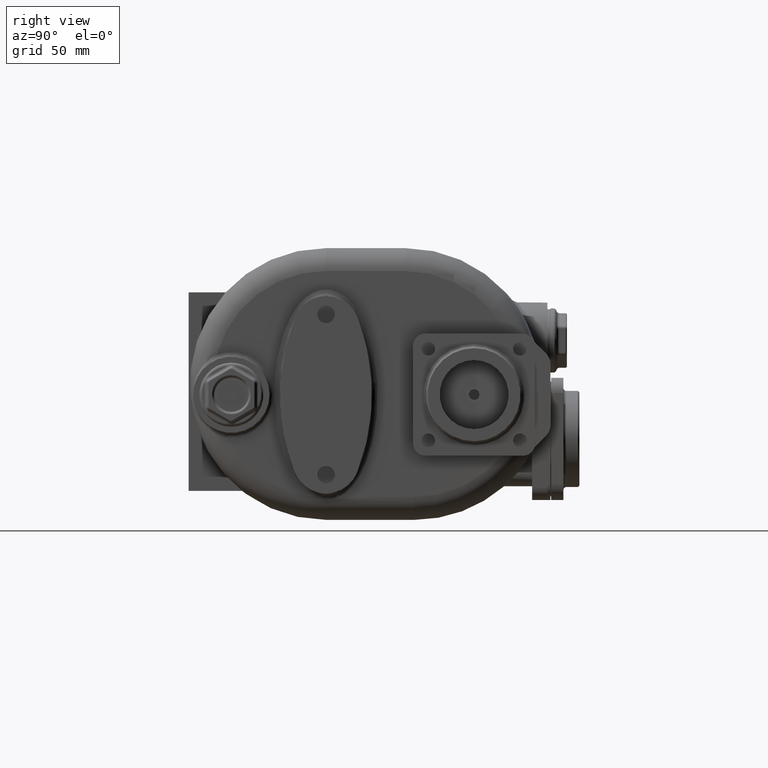
[diagram: clean part render]
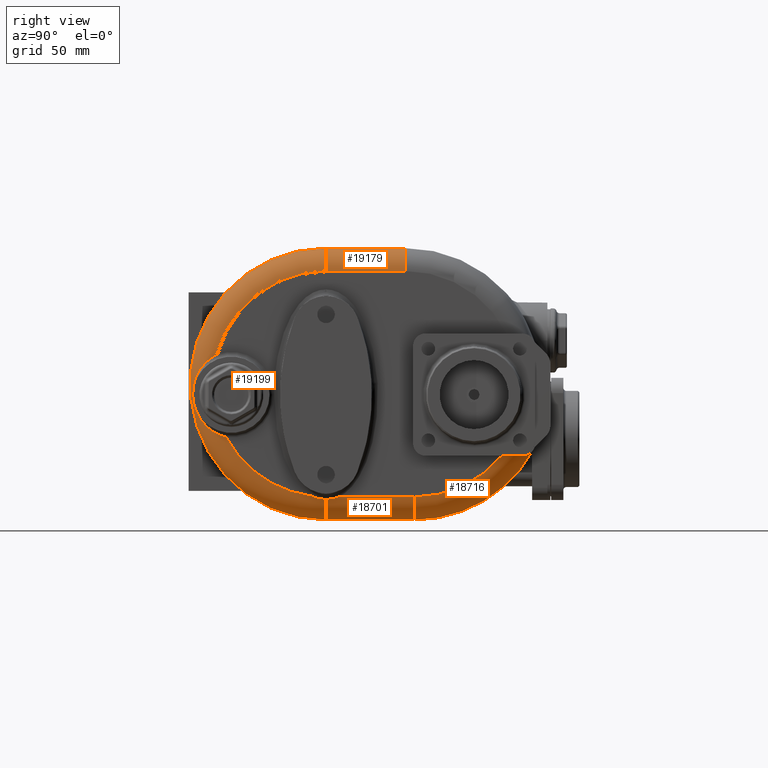
[diagram: same view with one multi-face feature highlighted, each face labeled with its STEP entity id]
A machine part, right view. The highlighted faces form ONE feature: a constant-radius fillet chain: 4 tangent blend faces with common blend radius 15 mm. The faces share edges in the B-rep.
Their STEP definitions:
[1] entity #18716 (Torus):
#1344=CARTESIAN_POINT('',(5.E1,1.480070426028E2,0.E0));
#1345=DIRECTION('',(1.E0,0.E0,0.E0));
#1346=DIRECTION('',(0.E0,0.E0,-1.E0));
#1347=AXIS2_PLACEMENT_3D('',#1344,#1345,#1346);
#1594=CARTESIAN_POINT('',(3.5E1,1.480070426028E2,-7.4E1));
#1595=DIRECTION('',(0.E0,1.E0,0.E0));
#1596=DIRECTION('',(1.E0,0.E0,0.E0));
#1597=AXIS2_PLACEMENT_3D('',#1594,#1595,#1596);
#1599=CARTESIAN_POINT('',(5.E1,2.051647192526E2,-4.7E1));
#1600=CARTESIAN_POINT('',(5.E1,2.054604480246E2,-4.7E1));
#1601=CARTESIAN_POINT('',(4.998957448394E1,2.060469748E2,-4.7E1));
#1602=CARTESIAN_POINT('',(4.994348871250E1,2.069126963310E2,-4.7E1));
#1603=CARTESIAN_POINT('',(4.986785899812E1,2.077621787491E2,-4.7E1));
#1604=CARTESIAN_POINT('',(4.976376363823E1,2.085937500739E2,-4.7E1));
#1605=CARTESIAN_POINT('',(4.963192232093E1,2.094082643997E2,-4.7E1));
#1606=CARTESIAN_POINT('',(4.947333763354E1,2.102041357612E2,-4.7E1));
#1607=CARTESIAN_POINT('',(4.928911085815E1,2.109800225709E2,-4.7E1));
#1608=CARTESIAN_POINT('',(4.908053117967E1,2.117344162030E2,-4.7E1));
#1609=CARTESIAN_POINT('',(4.884834021048E1,2.124678501238E2,-4.7E1));
#1610=CARTESIAN_POINT('',(4.859389860537E1,2.131788073620E2,-4.7E1));
#1611=CARTESIAN_POINT('',(4.831803735577E1,2.138675021596E2,-4.7E1));
#1612=CARTESIAN_POINT('',(4.802208028934E1,2.145328808469E2,-4.7E1));
#1613=CARTESIAN_POINT('',(4.770677934360E1,2.151752858305E2,-4.7E1));
#1614=CARTESIAN_POINT('',(4.737343372692E1,2.157938863265E2,-4.7E1));
#1615=CARTESIAN_POINT('',(4.702279652295E1,2.163889612331E2,-4.7E1));
#1616=CARTESIAN_POINT('',(4.665605186307E1,2.169599979273E2,-4.7E1));
#1617=CARTESIAN_POINT('',(4.627402823570E1,2.175071080283E2,-4.7E1));
#1618=CARTESIAN_POINT('',(4.587773883715E1,2.180301070302E2,-4.7E1));
#1619=CARTESIAN_POINT('',(4.546794498915E1,2.185291408812E2,-4.7E1));
#1620=CARTESIAN_POINT('',(4.518649188265E1,2.188456657205E2,-4.7E1));
#1621=CARTESIAN_POINT('',(4.504374406733E1,2.19E2,-4.7E1));
#1623=CARTESIAN_POINT('',(4.504374406733E1,2.19E2,-4.7E1));
#1624=CARTESIAN_POINT('',(4.492001548732E1,2.191337713030E2,-4.7E1));
#1625=CARTESIAN_POINT('',(4.466609038040E1,2.194035594413E2,-4.699329001555E1));
#1626=CARTESIAN_POINT('',(4.426545478998E1,2.198140130738E2,-4.696208160126E1));
#1627=CARTESIAN_POINT('',(4.384562487692E1,2.202283453526E2,-4.690885871310E1));
#1628=CARTESIAN_POINT('',(4.340748213830E1,2.206444581156E2,-4.683302001016E1));
#1629=CARTESIAN_POINT('',(4.295029711332E1,2.210617937295E2,-4.673376867051E1));
#1630=CARTESIAN_POINT('',(4.247448803435E1,2.214786557775E2,-4.661052058175E1));
#1631=CARTESIAN_POINT('',(4.198081766297E1,2.218931025346E2,-4.646291973076E1));
#1632=CARTESIAN_POINT('',(4.146992430627E1,2.223033686463E2,-4.629071773008E1));
#1633=CARTESIAN_POINT('',(4.094150849634E1,2.227084098325E2,-4.609338468517E1));
#1634=CARTESIAN_POINT('',(4.039720989749E1,2.231056838095E2,-4.587117184634E1));
#1635=CARTESIAN_POINT('',(3.983871792395E1,2.234928144359E2,-4.562460524809E1));
#1636=CARTESIAN_POINT('',(3.926670744910E1,2.238682408303E2,-4.535391589767E1));
#1637=CARTESIAN_POINT('',(3.868182105884E1,2.242304177610E2,-4.505936590040E1));
#1638=CARTESIAN_POINT('',(3.808587461294E1,2.245771388729E2,-4.474191277395E1));
#1639=CARTESIAN_POINT('',(3.748079396307E1,2.249063437128E2,-4.440277784883E1));
#1640=CARTESIAN_POINT('',(3.686727979972E1,2.252167359147E2,-4.404260447110E1));
#1641=CARTESIAN_POINT('',(3.624783002651E1,2.255062090768E2,-4.366319202281E1));
#1642=CARTESIAN_POINT('',(3.562458399145E1,2.257730883713E2,-4.326632014016E1));
#1643=CARTESIAN_POINT('',(3.520834982961E1,2.259348565896E2,-4.299164157888E1));
#1644=CARTESIAN_POINT('',(3.5E1,2.260116501133E2,-4.285185185185E1));
#1674=CARTESIAN_POINT('',(3.5E1,1.480070426028E2,0.E0));
#1675=DIRECTION('',(1.E0,0.E0,0.E0));
#1676=DIRECTION('',(0.E0,0.E0,-1.E0));
#1677=AXIS2_PLACEMENT_3D('',#1674,#1675,#1676);
#14316=CARTESIAN_POINT('',(3.5E1,1.480070426028E2,-8.9E1));
#14317=CARTESIAN_POINT('',(3.5E1,2.260116501133E2,-4.285185185185E1));
#14318=VERTEX_POINT('',#14316);
#14319=VERTEX_POINT('',#14317);
#14320=CARTESIAN_POINT('',(5.E1,1.480070426028E2,-7.4E1));
#14321=CARTESIAN_POINT('',(5.E1,2.051647192526E2,-4.7E1));
#14322=VERTEX_POINT('',#14320);
#14323=VERTEX_POINT('',#14321);
#14339=VERTEX_POINT('',#1621);
#18702=CARTESIAN_POINT('',(3.5E1,1.480070426028E2,0.E0));
#18703=DIRECTION('',(-1.E0,0.E0,0.E0));
#18704=DIRECTION('',(0.E0,-7.747702440691E-3,-9.999699861030E-1));
#18705=AXIS2_PLACEMENT_3D('',#18702,#18703,#18704);
#18706=TOROIDAL_SURFACE('',#18705,7.4E1,1.5E1);
#18708=ORIENTED_EDGE('',*,*,#18707,.F.);
#18709=ORIENTED_EDGE('',*,*,#18693,.F.);
#18710=ORIENTED_EDGE('',*,*,#18150,.T.);
#18711=ORIENTED_EDGE('',*,*,#17561,.T.);
#18713=ORIENTED_EDGE('',*,*,#18712,.T.);
#18714=EDGE_LOOP('',(#18708,#18709,#18710,#18711,#18713));
#18715=FACE_OUTER_BOUND('',#18714,.F.);
#18716=ADVANCED_FACE('',(#18715),#18706,.T.);
#1348=CIRCLE('',#1347,7.4E1);
#1598=CIRCLE('',#1597,1.5E1);
#1622=B_SPLINE_CURVE_WITH_KNOTS('',3,(#1599,#1600,#1601,#1602,#1603,#1604,#1605,
#1606,#1607,#1608,#1609,#1610,#1611,#1612,#1613,#1614,#1615,#1616,#1617,#1618,
#1619,#1620,#1621),.UNSPECIFIED.,.F.,.F.,(4,1,1,1,1,1,1,1,1,1,1,1,1,1,1,1,1,1,1,
1,4),(0.E0,5.E-2,1.E-1,1.5E-1,2.E-1,2.5E-1,3.E-1,3.5E-1,4.E-1,4.5E-1,5.E-1,
5.5E-1,6.E-1,6.5E-1,7.E-1,7.5E-1,8.E-1,8.5E-1,9.E-1,9.5E-1,1.E0),.UNSPECIFIED.);
#1645=B_SPLINE_CURVE_WITH_KNOTS('',3,(#1623,#1624,#1625,#1626,#1627,#1628,#1629,
#1630,#1631,#1632,#1633,#1634,#1635,#1636,#1637,#1638,#1639,#1640,#1641,#1642,
#1643,#1644),.UNSPECIFIED.,.F.,.F.,(4,1,1,1,1,1,1,1,1,1,1,1,1,1,1,1,1,1,1,4),(
0.E0,5.263157894737E-2,1.052631578947E-1,1.578947368421E-1,2.105263157895E-1,
2.631578947368E-1,3.157894736842E-1,3.684210526316E-1,4.210526315789E-1,
4.736842105263E-1,5.263157894737E-1,5.789473684211E-1,6.315789473684E-1,
6.842105263158E-1,7.368421052632E-1,7.894736842105E-1,8.421052631579E-1,
8.947368421053E-1,9.473684210526E-1,1.E0),.UNSPECIFIED.);
#1678=CIRCLE('',#1677,8.9E1);
#17561=EDGE_CURVE('',#14323,#14339,#1622,.T.);
#18150=EDGE_CURVE('',#14322,#14323,#1348,.T.);
#18693=EDGE_CURVE('',#14322,#14318,#1598,.T.);
#18707=EDGE_CURVE('',#14318,#14319,#1678,.T.);
#18712=EDGE_CURVE('',#14339,#14319,#1645,.T.);
[2] entity #18701 (Cylinder):
#1349=DIRECTION('',(-5.484348586333E-8,1.E0,6.468834463909E-14));
#1350=VECTOR('',#1349,4.964809632329E1);
#1351=CARTESIAN_POINT('',(5.000000272287E1,9.835894627951E1,-7.4E1));
#1352=LINE('',#1351,#1350);
#1353=CARTESIAN_POINT('',(5.000000272287E1,9.835894627951E1,-7.4E1));
#1574=CARTESIAN_POINT('',(4.991667028371E1,8.999999999996E1,-7.557894781954E1));
#1575=CARTESIAN_POINT('',(4.991667432725E1,9.025286134367E1,-7.557894518014E1));
#1576=CARTESIAN_POINT('',(4.991756472602E1,9.075908529133E1,-7.557045638069E1));
#1577=CARTESIAN_POINT('',(4.992158041935E1,9.152015494578E1,-7.553209520426E1));
#1578=CARTESIAN_POINT('',(4.992807138358E1,9.228226849688E1,-7.546787076244E1));
#1579=CARTESIAN_POINT('',(4.993672161475E1,9.304501082682E1,-7.537764276855E1));
#1580=CARTESIAN_POINT('',(4.994707391416E1,9.380795171828E1,-7.526118338519E1));
#1581=CARTESIAN_POINT('',(4.995852716923E1,9.457094237530E1,-7.511830380394E1));
#1582=CARTESIAN_POINT('',(4.997033976277E1,9.533358224529E1,-7.494873204050E1));
#1583=CARTESIAN_POINT('',(4.998160895249E1,9.609519200048E1,-7.475236640724E1));
#1584=CARTESIAN_POINT('',(4.999128254641E1,9.685458690036E1,-7.452923005348E1));
#1585=CARTESIAN_POINT('',(4.999815627731E1,9.761015977225E1,-7.427964791418E1));
#1586=CARTESIAN_POINT('',(5.000000323300E1,9.810993273399E1,-7.409609835297E1));
#1587=CARTESIAN_POINT('',(5.000000272287E1,9.835894627951E1,-7.4E1));
#1589=CARTESIAN_POINT('',(3.5E1,9.E1,-7.4E1));
#1590=DIRECTION('',(0.E0,1.E0,0.E0));
#1591=DIRECTION('',(9.944444014574E-1,0.E0,-1.052631578947E-1));
#1592=AXIS2_PLACEMENT_3D('',#1589,#1590,#1591);
#1594=CARTESIAN_POINT('',(3.5E1,1.480070426028E2,-7.4E1));
#1595=DIRECTION('',(0.E0,1.E0,0.E0));
#1596=DIRECTION('',(1.E0,0.E0,0.E0));
#1597=AXIS2_PLACEMENT_3D('',#1594,#1595,#1596);
#2266=CARTESIAN_POINT('',(4.991667028371E1,8.999999999996E1,-7.557894781954E1));
#12696=DIRECTION('',(0.E0,1.E0,0.E0));
#12697=VECTOR('',#12696,5.800704260279E1);
#12698=CARTESIAN_POINT('',(3.5E1,9.000000000001E1,-8.9E1));
#12699=LINE('',#12698,#12697);
#14316=CARTESIAN_POINT('',(3.5E1,1.480070426028E2,-8.9E1));
#14318=VERTEX_POINT('',#14316);
#14320=CARTESIAN_POINT('',(5.E1,1.480070426028E2,-7.4E1));
#14322=VERTEX_POINT('',#14320);
#14324=CARTESIAN_POINT('',(3.5E1,9.000000000001E1,-8.9E1));
#14325=VERTEX_POINT('',#14324);
#14372=VERTEX_POINT('',#1353);
#14384=VERTEX_POINT('',#2266);
#18686=CARTESIAN_POINT('',(3.5E1,8.931044758405E1,-7.4E1));
#18687=DIRECTION('',(0.E0,1.E0,0.E0));
#18688=DIRECTION('',(1.E0,0.E0,0.E0));
#18689=AXIS2_PLACEMENT_3D('',#18686,#18687,#18688);
#18690=CYLINDRICAL_SURFACE('',#18689,1.5E1);
#18691=ORIENTED_EDGE('',*,*,#18676,.T.);
#18692=ORIENTED_EDGE('',*,*,#18152,.T.);
#18694=ORIENTED_EDGE('',*,*,#18693,.T.);
#18696=ORIENTED_EDGE('',*,*,#18695,.F.);
#18698=ORIENTED_EDGE('',*,*,#18697,.F.);
#18699=EDGE_LOOP('',(#18691,#18692,#18694,#18696,#18698));
#18700=FACE_OUTER_BOUND('',#18699,.F.);
#18701=ADVANCED_FACE('',(#18700),#18690,.T.);
#1588=B_SPLINE_CURVE_WITH_KNOTS('',3,(#1574,#1575,#1576,#1577,#1578,#1579,#1580,
#1581,#1582,#1583,#1584,#1585,#1586,#1587),.UNSPECIFIED.,.F.,.F.,(4,1,1,1,1,1,1,
1,1,1,1,4),(0.E0,9.090909090909E-2,1.818181818182E-1,2.727272727273E-1,
3.636363636364E-1,4.545454545455E-1,5.454545454545E-1,6.363636363636E-1,
7.272727272727E-1,8.181818181818E-1,9.090909090909E-1,1.E0),.UNSPECIFIED.);
#1593=CIRCLE('',#1592,1.5E1);
#1598=CIRCLE('',#1597,1.5E1);
#18152=EDGE_CURVE('',#14372,#14322,#1352,.T.);
#18676=EDGE_CURVE('',#14384,#14372,#1588,.T.);
#18693=EDGE_CURVE('',#14322,#14318,#1598,.T.);
#18695=EDGE_CURVE('',#14325,#14318,#12699,.T.);
#18697=EDGE_CURVE('',#14384,#14325,#1593,.T.);
[3] entity #19199 (Torus):
#1330=CARTESIAN_POINT('',(5.E1,9.E1,0.E0));
#1331=DIRECTION('',(1.E0,0.E0,0.E0));
#1332=DIRECTION('',(0.E0,0.E0,1.E0));
#1333=AXIS2_PLACEMENT_3D('',#1330,#1331,#1332);
#1554=CARTESIAN_POINT('',(5.E1,9.E1,0.E0));
#1555=DIRECTION('',(1.E0,0.E0,0.E0));
#1556=DIRECTION('',(0.E0,-8.824911995273E-1,-4.703289091230E-1));
#1557=AXIS2_PLACEMENT_3D('',#1554,#1555,#1556);
#1589=CARTESIAN_POINT('',(3.5E1,9.E1,-7.4E1));
#1590=DIRECTION('',(0.E0,1.E0,0.E0));
#1591=DIRECTION('',(9.944444014574E-1,0.E0,-1.052631578947E-1));
#1592=AXIS2_PLACEMENT_3D('',#1589,#1590,#1591);
#2201=CARTESIAN_POINT('',(4.999999965049E1,2.469565123767E1,-3.480433921291E1));
#2202=CARTESIAN_POINT('',(4.999999948275E1,2.447509613558E1,-3.475822991126E1));
#2203=CARTESIAN_POINT('',(4.999401597012E1,2.403008165833E1,-3.465887861651E1));
#2204=CARTESIAN_POINT('',(4.996682401433E1,2.335171526065E1,-3.448747955629E1));
#2205=CARTESIAN_POINT('',(4.992115889801E1,2.266290022461E1,-3.429262315485E1));
#2206=CARTESIAN_POINT('',(4.985677194214E1,2.196424513658E1,-3.407320990152E1));
#2207=CARTESIAN_POINT('',(4.977343109282E1,2.125645355720E1,-3.382818373425E1));
#2208=CARTESIAN_POINT('',(4.967097212128E1,2.054056916057E1,-3.355653224451E1));
#2209=CARTESIAN_POINT('',(4.954925961065E1,1.981759590538E1,-3.325728877708E1));
#2210=CARTESIAN_POINT('',(4.940822200326E1,1.908867873739E1,-3.292948118630E1));
#2211=CARTESIAN_POINT('',(4.924782319051E1,1.835498016453E1,-3.257220630300E1));
#2212=CARTESIAN_POINT('',(4.906813851732E1,1.761792763646E1,-3.218463901421E1));
#2213=CARTESIAN_POINT('',(4.886928692731E1,1.687891639525E1,-3.176601227732E1));
#2214=CARTESIAN_POINT('',(4.865150950876E1,1.613955608907E1,-3.131567415432E1));
#2215=CARTESIAN_POINT('',(4.841512538991E1,1.540146959965E1,-3.083303352011E1));
#2216=CARTESIAN_POINT('',(4.816056531329E1,1.466639620819E1,-3.031763553429E1));
#2217=CARTESIAN_POINT('',(4.788840720179E1,1.393620880539E1,-2.976916185212E1));
#2218=CARTESIAN_POINT('',(4.759931712988E1,1.321274751243E1,-2.918736589304E1));
#2219=CARTESIAN_POINT('',(4.729419211004E1,1.249811648938E1,-2.857229971660E1));
#2220=CARTESIAN_POINT('',(4.697402182304E1,1.179430257038E1,-2.792405384821E1));
#2221=CARTESIAN_POINT('',(4.664009509392E1,1.110356875800E1,-2.724308029486E1));
#2222=CARTESIAN_POINT('',(4.629385772022E1,1.042811618083E1,-2.653003633750E1));
#2223=CARTESIAN_POINT('',(4.593709726856E1,9.770321235366E0,-2.578590445211E1));
#2224=CARTESIAN_POINT('',(4.557194569007E1,9.132713458013E0,-2.501226416673E1));
#2225=CARTESIAN_POINT('',(4.520088542606E1,8.517819087673E0,-2.421101872207E1));
#2226=CARTESIAN_POINT('',(4.482702569986E1,7.928562976019E0,-2.338523082819E1));
#2227=CARTESIAN_POINT('',(4.445366992463E1,7.367483536797E0,-2.253818859414E1));
#2228=CARTESIAN_POINT('',(4.408512043710E1,6.837765456589E0,-2.167493812398E1));
#2229=CARTESIAN_POINT('',(4.372539817630E1,6.341641614182E0,-2.080069298199E1));
#2230=CARTESIAN_POINT('',(4.337962381673E1,5.881910605868E0,-1.992243510023E1));
#2231=CARTESIAN_POINT('',(4.305259856160E1,5.460622403901E0,-1.904836241456E1));
#2232=CARTESIAN_POINT('',(4.274847468661E1,5.078556677826E0,-1.818565102905E1));
#2233=CARTESIAN_POINT('',(4.247053710976E1,4.735330668503E0,-1.734012037180E1));
#2234=CARTESIAN_POINT('',(4.222113863372E1,4.430040316275E0,-1.651835783767E1));
#2235=CARTESIAN_POINT('',(4.200109186386E1,4.160111304905E0,-1.572239774605E1));
#2236=CARTESIAN_POINT('',(4.181057125019E1,3.922995351591E0,-1.495437275850E1));
#2237=CARTESIAN_POINT('',(4.164876559761E1,3.715751318632E0,-1.421513774504E1));
#2238=CARTESIAN_POINT('',(4.151370741275E1,3.534424036342E0,-1.350004382468E1));
#2239=CARTESIAN_POINT('',(4.140377047272E1,3.375828138634E0,-1.280461556920E1));
#2240=CARTESIAN_POINT('',(4.131771330293E1,3.237278934009E0,-1.212337685457E1));
#2241=CARTESIAN_POINT('',(4.125458606386E1,3.117007099608E0,-1.145356562562E1));
#2242=CARTESIAN_POINT('',(4.121318306230E1,3.013530472385E0,-1.079350058209E1));
#2243=CARTESIAN_POINT('',(4.119274370713E1,2.925537042498E0,-1.013934806818E1));
#2244=CARTESIAN_POINT('',(4.119304314188E1,2.852110891931E0,-9.486304464243E0));
#2245=CARTESIAN_POINT('',(4.121472468876E1,2.793017811788E0,-8.829747707535E0));
#2246=CARTESIAN_POINT('',(4.125769455374E1,2.747944469350E0,-8.164971370904E0));
#2247=CARTESIAN_POINT('',(4.132231269120E1,2.717116789086E0,-7.487934713466E0));
#2248=CARTESIAN_POINT('',(4.138033800405E1,2.706387637048E0,-7.024209105256E0));
#2249=CARTESIAN_POINT('',(4.141331961736E1,2.703800406041E0,-6.789704412498E0));
#2251=CARTESIAN_POINT('',(4.999999824508E1,8.047059004912E1,-7.338385615119E1));
#2252=CARTESIAN_POINT('',(4.999999967194E1,8.072065318157E1,-7.350113837295E1));
#2253=CARTESIAN_POINT('',(4.999858799285E1,8.122029241182E1,-7.372558336512E1));
#2254=CARTESIAN_POINT('',(4.999327074088E1,8.196699838406E1,-7.403203455917E1));
#2255=CARTESIAN_POINT('',(4.998567887929E1,8.271095633507E1,-7.430896536445E1));
#2256=CARTESIAN_POINT('',(4.997662541860E1,8.345181383331E1,-7.455695911341E1));
#2257=CARTESIAN_POINT('',(4.996682350862E1,8.418936083139E1,-7.477658317019E1));
#2258=CARTESIAN_POINT('',(4.995687636060E1,8.492373352444E1,-7.496857818796E1));
#2259=CARTESIAN_POINT('',(4.994730126083E1,8.565511857150E1,-7.513352425108E1));
#2260=CARTESIAN_POINT('',(4.993852128214E1,8.638400433070E1,-7.527207128153E1));
#2261=CARTESIAN_POINT('',(4.993088088408E1,8.711100611950E1,-7.538476925686E1));
#2262=CARTESIAN_POINT('',(4.992466710113E1,8.783634741310E1,-7.547190759404E1));
#2263=CARTESIAN_POINT('',(4.992008730438E1,8.855977407744E1,-7.553385118025E1));
#2264=CARTESIAN_POINT('',(4.991728828042E1,8.928115809599E1,-7.557077448268E1));
#2265=CARTESIAN_POINT('',(4.991667487972E1,8.976070041425E1,-7.557894371919E1));
#2266=CARTESIAN_POINT('',(4.991667028371E1,8.999999999996E1,-7.557894781954E1));
#2268=CARTESIAN_POINT('',(3.5E1,9.E1,7.4E1));
#2269=DIRECTION('',(0.E0,-1.E0,0.E0));
#2270=DIRECTION('',(1.E0,0.E0,0.E0));
#2271=AXIS2_PLACEMENT_3D('',#2268,#2269,#2270);
#2273=CARTESIAN_POINT('',(4.141331961736E1,2.703800406041E0,-6.789704412498E0));
#2274=CARTESIAN_POINT('',(4.144602953201E1,2.701291705464E0,-6.557960417628E0));
#2275=CARTESIAN_POINT('',(4.151993851448E1,2.701564963272E0,-6.083337314918E0));
#2276=CARTESIAN_POINT('',(4.165752338748E1,2.720019311701E0,-5.338197845789E0));
#2277=CARTESIAN_POINT('',(4.182272582815E1,2.758947975569E0,-4.561479725391E0));
#2278=CARTESIAN_POINT('',(4.201582745535E1,2.820718076048E0,-3.754627737999E0));
#2279=CARTESIAN_POINT('',(4.223631391629E1,2.907567700020E0,-2.919762890947E0));
#2280=CARTESIAN_POINT('',(4.248450597120E1,3.022378602693E0,-2.057186148029E0));
#2281=CARTESIAN_POINT('',(4.276094616925E1,3.168560069177E0,-1.164932236913E0));
#2282=CARTESIAN_POINT('',(4.306493081978E1,3.349410121988E0,
-2.433527175440E-1));
#2283=CARTESIAN_POINT('',(4.339205132975E1,3.566107888753E0,7.001817413084E-1));
#2284=CARTESIAN_POINT('',(4.373791228850E1,3.819399810494E0,1.658515204421E0));
#2285=CARTESIAN_POINT('',(4.409747509800E1,4.108945304447E0,2.620512107043E0));
#2286=CARTESIAN_POINT('',(4.446498017771E1,4.432871098348E0,3.576187188082E0));
#2287=CARTESIAN_POINT('',(4.483696333329E1,4.790491013936E0,4.522450247970E0));
#2288=CARTESIAN_POINT('',(4.520989477488E1,5.180648447444E0,5.456486245173E0));
#2289=CARTESIAN_POINT('',(4.558037218494E1,5.601586895637E0,6.373342580809E0));
#2290=CARTESIAN_POINT('',(4.594479274448E1,6.050566208266E0,7.267787291633E0));
#2291=CARTESIAN_POINT('',(4.630064629855E1,6.525422864923E0,8.137281703537E0));
#2292=CARTESIAN_POINT('',(4.664617776316E1,7.024569448156E0,8.981002355651E0));
#2293=CARTESIAN_POINT('',(4.697960558843E1,7.546024788835E0,9.797727282081E0));
#2294=CARTESIAN_POINT('',(4.729934987955E1,8.087609173804E0,1.058574144304E1));
#2295=CARTESIAN_POINT('',(4.760393587945E1,8.646865957372E0,1.134349102080E1));
#2296=CARTESIAN_POINT('',(4.789244543288E1,9.221948516075E0,1.207059431850E1));
#2297=CARTESIAN_POINT('',(4.816414173846E1,9.811150004821E0,1.276697839051E1));
#2298=CARTESIAN_POINT('',(4.841834572100E1,1.041266656312E1,1.343254051618E1));
#2299=CARTESIAN_POINT('',(4.865438809536E1,1.102441521962E1,1.406691032700E1));
#2300=CARTESIAN_POINT('',(4.887174289410E1,1.164431156919E1,1.466987779138E1));
#2301=CARTESIAN_POINT('',(4.907015575265E1,1.227074627613E1,1.524177935712E1));
#2302=CARTESIAN_POINT('',(4.924946154198E1,1.290222695717E1,1.578307035126E1));
#2303=CARTESIAN_POINT('',(4.940954237588E1,1.353726120508E1,1.629419073717E1));
#2304=CARTESIAN_POINT('',(4.955026619078E1,1.417406353272E1,1.677548110028E1));
#2305=CARTESIAN_POINT('',(4.967163208783E1,1.481101764179E1,1.722744037339E1));
#2306=CARTESIAN_POINT('',(4.977379580365E1,1.544707439742E1,1.765093180028E1));
#2307=CARTESIAN_POINT('',(4.985693534047E1,1.608130208878E1,1.804681171730E1));
#2308=CARTESIAN_POINT('',(4.992123431647E1,1.671283298936E1,1.841591847938E1));
#2309=CARTESIAN_POINT('',(4.996685445473E1,1.734051573546E1,1.875917697984E1));
#2310=CARTESIAN_POINT('',(4.999402731029E1,1.796337583993E1,1.907740631063E1));
#2311=CARTESIAN_POINT('',(4.999999135037E1,1.837482057727E1,1.927353630389E1));
#2312=CARTESIAN_POINT('',(4.999999524385E1,1.857945855786E1,1.936765813826E1));
#3793=CARTESIAN_POINT('',(3.5E1,9.E1,0.E0));
#3794=DIRECTION('',(1.E0,0.E0,0.E0));
#3795=DIRECTION('',(0.E0,0.E0,1.E0));
#3796=AXIS2_PLACEMENT_3D('',#3793,#3794,#3795);
#14324=CARTESIAN_POINT('',(3.5E1,9.000000000001E1,-8.9E1));
#14325=VERTEX_POINT('',#14324);
#14326=CARTESIAN_POINT('',(3.5E1,9.E1,8.9E1));
#14327=VERTEX_POINT('',#14326);
#14329=CARTESIAN_POINT('',(5.E1,9.E1,7.4E1));
#14331=VERTEX_POINT('',#14329);
#14383=VERTEX_POINT('',#2251);
#14384=VERTEX_POINT('',#2266);
#14399=CARTESIAN_POINT('',(5.E1,2.469565134499E1,-3.480433922909E1));
#14401=VERTEX_POINT('',#14399);
#14403=VERTEX_POINT('',#2249);
#14405=VERTEX_POINT('',#2312);
#19180=CARTESIAN_POINT('',(3.5E1,9.E1,0.E0));
#19181=DIRECTION('',(-1.E0,0.E0,0.E0));
#19182=DIRECTION('',(0.E0,7.747702440691E-3,9.999699861030E-1));
#19183=AXIS2_PLACEMENT_3D('',#19180,#19181,#19182);
#19184=TOROIDAL_SURFACE('',#19183,7.4E1,1.5E1);
#19186=ORIENTED_EDGE('',*,*,#19185,.F.);
#19187=ORIENTED_EDGE('',*,*,#18188,.T.);
#19189=ORIENTED_EDGE('',*,*,#19188,.T.);
#19190=ORIENTED_EDGE('',*,*,#18697,.T.);
#19192=ORIENTED_EDGE('',*,*,#19191,.F.);
#19193=ORIENTED_EDGE('',*,*,#19172,.F.);
#19194=ORIENTED_EDGE('',*,*,#18138,.T.);
#19196=ORIENTED_EDGE('',*,*,#19195,.F.);
#19197=EDGE_LOOP('',(#19186,#19187,#19189,#19190,#19192,#19193,#19194,#19196));
#19198=FACE_OUTER_BOUND('',#19197,.F.);
#19199=ADVANCED_FACE('',(#19198),#19184,.T.);
#1334=CIRCLE('',#1333,7.4E1);
#1558=CIRCLE('',#1557,7.4E1);
#1593=CIRCLE('',#1592,1.5E1);
#2250=B_SPLINE_CURVE_WITH_KNOTS('',3,(#2201,#2202,#2203,#2204,#2205,#2206,#2207,
#2208,#2209,#2210,#2211,#2212,#2213,#2214,#2215,#2216,#2217,#2218,#2219,#2220,
#2221,#2222,#2223,#2224,#2225,#2226,#2227,#2228,#2229,#2230,#2231,#2232,#2233,
#2234,#2235,#2236,#2237,#2238,#2239,#2240,#2241,#2242,#2243,#2244,#2245,#2246,
#2247,#2248,#2249),.UNSPECIFIED.,.F.,.F.,(4,1,1,1,1,1,1,1,1,1,1,1,1,1,1,1,1,1,1,
1,1,1,1,1,1,1,1,1,1,1,1,1,1,1,1,1,1,1,1,1,1,1,1,1,1,1,4),(0.E0,
2.173913043478E-2,4.347826086957E-2,6.521739130435E-2,8.695652173913E-2,
1.086956521739E-1,1.304347826087E-1,1.521739130435E-1,1.739130434783E-1,
1.956521739130E-1,2.173913043478E-1,2.391304347826E-1,2.608695652174E-1,
2.826086956522E-1,3.043478260870E-1,3.260869565217E-1,3.478260869565E-1,
3.695652173913E-1,3.913043478261E-1,4.130434782609E-1,4.347826086957E-1,
4.565217391304E-1,4.782608695652E-1,5.E-1,5.217391304348E-1,5.434782608696E-1,
5.652173913043E-1,5.869565217391E-1,6.086956521739E-1,6.304347826087E-1,
6.521739130435E-1,6.739130434783E-1,6.956521739130E-1,7.173913043478E-1,
7.391304347826E-1,7.608695652174E-1,7.826086956522E-1,8.043478260870E-1,
8.260869565217E-1,8.478260869565E-1,8.695652173913E-1,8.913043478261E-1,
9.130434782609E-1,9.347826086957E-1,9.565217391304E-1,9.782608695652E-1,1.E0),
.UNSPECIFIED.);
#2267=B_SPLINE_CURVE_WITH_KNOTS('',3,(#2251,#2252,#2253,#2254,#2255,#2256,#2257,
#2258,#2259,#2260,#2261,#2262,#2263,#2264,#2265,#2266),.UNSPECIFIED.,.F.,.F.,(4,
1,1,1,1,1,1,1,1,1,1,1,1,4),(0.E0,7.692307692308E-2,1.538461538462E-1,
2.307692307692E-1,3.076923076923E-1,3.846153846154E-1,4.615384615385E-1,
5.384615384615E-1,6.153846153846E-1,6.923076923077E-1,7.692307692308E-1,
8.461538461538E-1,9.230769230769E-1,1.E0),.UNSPECIFIED.);
#2272=CIRCLE('',#2271,1.5E1);
#2313=B_SPLINE_CURVE_WITH_KNOTS('',3,(#2273,#2274,#2275,#2276,#2277,#2278,#2279,
#2280,#2281,#2282,#2283,#2284,#2285,#2286,#2287,#2288,#2289,#2290,#2291,#2292,
#2293,#2294,#2295,#2296,#2297,#2298,#2299,#2300,#2301,#2302,#2303,#2304,#2305,
#2306,#2307,#2308,#2309,#2310,#2311,#2312),.UNSPECIFIED.,.F.,.F.,(4,1,1,1,1,1,1,
1,1,1,1,1,1,1,1,1,1,1,1,1,1,1,1,1,1,1,1,1,1,1,1,1,1,1,1,1,1,4),(0.E0,
2.702702702703E-2,5.405405405405E-2,8.108108108108E-2,1.081081081081E-1,
1.351351351351E-1,1.621621621622E-1,1.891891891892E-1,2.162162162162E-1,
2.432432432432E-1,2.702702702703E-1,2.972972972973E-1,3.243243243243E-1,
3.513513513514E-1,3.783783783784E-1,4.054054054054E-1,4.324324324324E-1,
4.594594594595E-1,4.864864864865E-1,5.135135135135E-1,5.405405405405E-1,
5.675675675676E-1,5.945945945946E-1,6.216216216216E-1,6.486486486486E-1,
6.756756756757E-1,7.027027027027E-1,7.297297297297E-1,7.567567567568E-1,
7.837837837838E-1,8.108108108108E-1,8.378378378378E-1,8.648648648649E-1,
8.918918918919E-1,9.189189189189E-1,9.459459459459E-1,9.729729729730E-1,1.E0),
.UNSPECIFIED.);
#3797=CIRCLE('',#3796,8.9E1);
#18138=EDGE_CURVE('',#14331,#14405,#1334,.T.);
#18188=EDGE_CURVE('',#14401,#14383,#1558,.T.);
#18697=EDGE_CURVE('',#14384,#14325,#1593,.T.);
#19172=EDGE_CURVE('',#14331,#14327,#2272,.T.);
#19185=EDGE_CURVE('',#14401,#14403,#2250,.T.);
#19188=EDGE_CURVE('',#14383,#14384,#2267,.T.);
#19191=EDGE_CURVE('',#14327,#14325,#3797,.T.);
#19195=EDGE_CURVE('',#14403,#14405,#2313,.T.);
[4] entity #19179 (Cylinder):
#1335=DIRECTION('',(0.E0,-1.E0,0.E0));
#1336=VECTOR('',#1335,5.195455886297E1);
#1337=CARTESIAN_POINT('',(5.E1,1.419545588630E2,7.4E1));
#1338=LINE('',#1337,#1336);
#2196=CARTESIAN_POINT('',(3.5E1,1.419545588630E2,7.4E1));
#2197=DIRECTION('',(0.E0,-1.E0,0.E0));
#2198=DIRECTION('',(1.E0,0.E0,0.E0));
#2199=AXIS2_PLACEMENT_3D('',#2196,#2197,#2198);
#2268=CARTESIAN_POINT('',(3.5E1,9.E1,7.4E1));
#2269=DIRECTION('',(0.E0,-1.E0,0.E0));
#2270=DIRECTION('',(1.E0,0.E0,0.E0));
#2271=AXIS2_PLACEMENT_3D('',#2268,#2269,#2270);
#12892=DIRECTION('',(0.E0,-1.E0,0.E0));
#12893=VECTOR('',#12892,5.195455886294E1);
#12894=CARTESIAN_POINT('',(3.5E1,1.419545588630E2,8.9E1));
#12895=LINE('',#12894,#12893);
#14326=CARTESIAN_POINT('',(3.5E1,9.E1,8.9E1));
#14327=VERTEX_POINT('',#14326);
#14328=CARTESIAN_POINT('',(5.E1,1.419545588630E2,7.4E1));
#14329=CARTESIAN_POINT('',(5.E1,9.E1,7.4E1));
#14330=VERTEX_POINT('',#14328);
#14331=VERTEX_POINT('',#14329);
#14332=CARTESIAN_POINT('',(3.5E1,1.419545588630E2,8.9E1));
#14333=VERTEX_POINT('',#14332);
#19166=CARTESIAN_POINT('',(3.5E1,1.426441112789E2,7.4E1));
#19167=DIRECTION('',(0.E0,-1.E0,0.E0));
#19168=DIRECTION('',(1.E0,0.E0,0.E0));
#19169=AXIS2_PLACEMENT_3D('',#19166,#19167,#19168);
#19170=CYLINDRICAL_SURFACE('',#19169,1.5E1);
#19171=ORIENTED_EDGE('',*,*,#18140,.T.);
#19173=ORIENTED_EDGE('',*,*,#19172,.T.);
#19175=ORIENTED_EDGE('',*,*,#19174,.F.);
#19176=ORIENTED_EDGE('',*,*,#19158,.F.);
#19177=EDGE_LOOP('',(#19171,#19173,#19175,#19176));
#19178=FACE_OUTER_BOUND('',#19177,.F.);
#19179=ADVANCED_FACE('',(#19178),#19170,.T.);
#2200=CIRCLE('',#2199,1.5E1);
#2272=CIRCLE('',#2271,1.5E1);
#18140=EDGE_CURVE('',#14330,#14331,#1338,.T.);
#19158=EDGE_CURVE('',#14330,#14333,#2200,.T.);
#19172=EDGE_CURVE('',#14331,#14327,#2272,.T.);
#19174=EDGE_CURVE('',#14333,#14327,#12895,.T.);